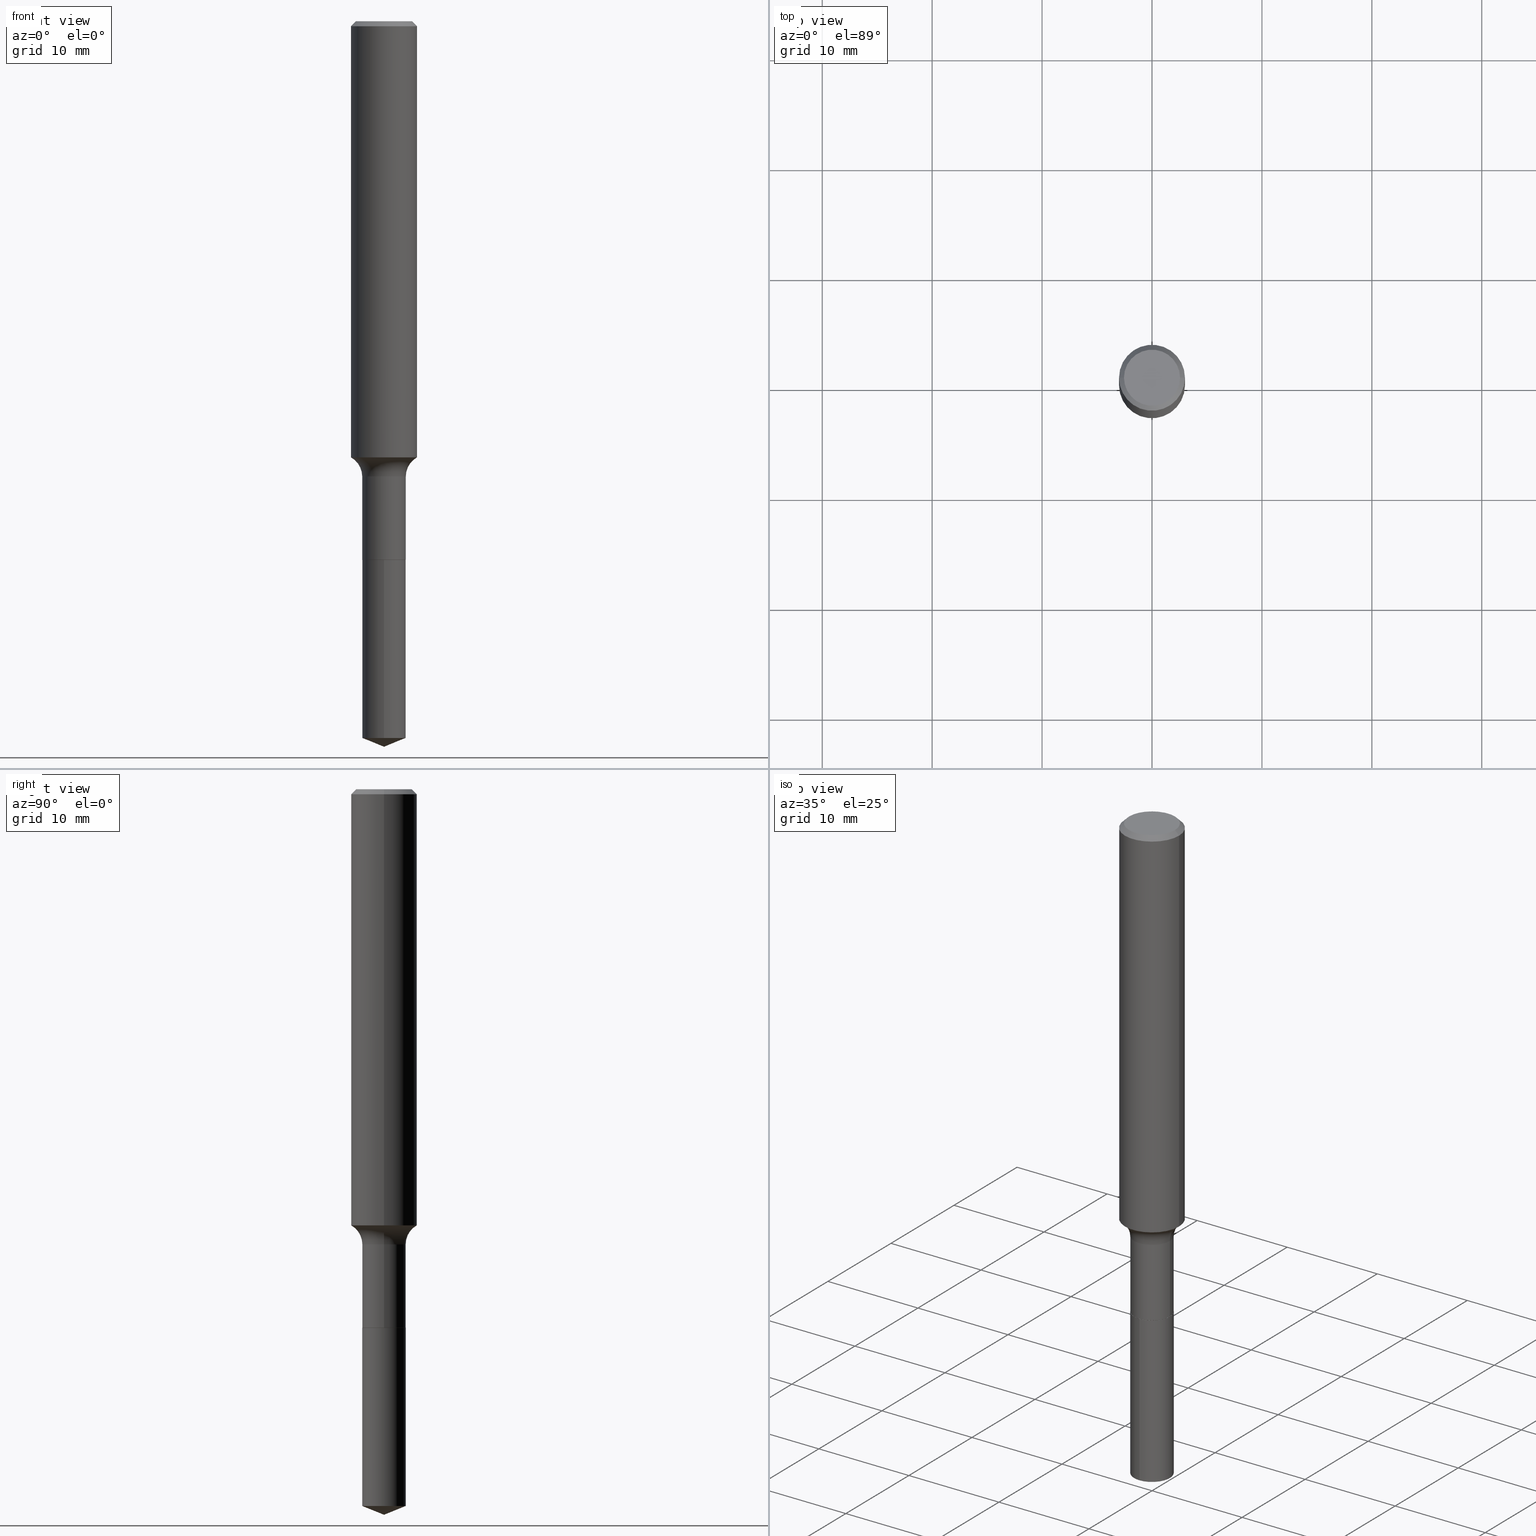
[diagram: canonical four-view strip — front | top / right | iso, engineering-drawing reading convention]
A machine part, canonical four-view strip (front | top / right | iso — engineering-drawing reading convention). The complete STEP part file that produces these views, byte-faithful:
ISO-10303-21;
HEADER;
FILE_DESCRIPTION (( 'STEP AP203' ),
    '1' );
FILE_NAME ('56803.STEP',
    '2024-04-19T13:58:35',
    ( '' ),
    ( '' ),
    'SwSTEP 2.0',
    'SolidWorks 2023',
    '' );
FILE_SCHEMA (( 'CONFIG_CONTROL_DESIGN' ));
ENDSEC;

DATA;
#1 = CARTESIAN_POINT ( 'NONE',  ( -0.1003850000000000159, 7.319105043583386689E-16, -3.975387207052680940E-17 ) ) ;
#2 = EDGE_CURVE ( 'NONE', #141, #307, #59, .T. ) ;
#3 = CYLINDRICAL_SURFACE ( 'NONE', #459, 0.1181000000000001077 ) ;
#4 = DIRECTION ( 'NONE',  ( 1.000000000000000000, -6.982962677686270655E-15, 0.000000000000000000 ) ) ;
#5 = DIRECTION ( 'NONE',  ( -2.445468806185136597E-29, 3.491481338843145583E-15, 1.000000000000000000 ) ) ;
#6 = CYLINDRICAL_SURFACE ( 'NONE', #8, 0.1181000000000001077 ) ;
#7 = CARTESIAN_POINT ( 'NONE',  ( 3.986358700962389845E-29, -5.691463730448209971E-15, -1.630099999999999660 ) ) ;
#8 = AXIS2_PLACEMENT_3D ( 'NONE', #465, #354, #467 ) ;
#9 = DIRECTION ( 'NONE',  ( -2.445468806185136597E-29, 3.491481338843145583E-15, 1.000000000000000000 ) ) ;
#10 = TOROIDAL_SURFACE ( 'NONE', #124, 0.1560999999999999333, 0.07799999999999993050 ) ;
#11 = EDGE_LOOP ( 'NONE', ( #41, #180, #186, #402 ) ) ;
#12 = CC_DESIGN_PERSON_AND_ORGANIZATION_ASSIGNMENT ( #274, #266, ( #187 ) ) ;
#13 = CARTESIAN_POINT ( 'NONE',  ( 0.1180999999999999966, -8.865394841523547570E-16, -0.01771500000000010913 ) ) ;
#14 =( LENGTH_UNIT ( ) NAMED_UNIT ( * ) SI_UNIT ( $, .METRE. ) );
#15 = CARTESIAN_POINT ( 'NONE',  ( 0.000000000000000000, 0.000000000000000000, 0.000000000000000000 ) ) ;
#16 = EDGE_CURVE ( 'NONE', #26, #67, #288, .T. ) ;
#17 = LOCAL_TIME ( 9, 58, 35.00000000000000000, #350 ) ;
#18 = DIRECTION ( 'NONE',  ( 1.000000000000000000, 0.000000000000000000, 0.000000000000000000 ) ) ;
#19 = APPROVAL ( #192, 'UNSPECIFIED' ) ;
#20 = VERTEX_POINT ( 'NONE', #397 ) ;
#21 = DIRECTION ( 'NONE',  ( -2.445468806185136597E-29, 3.491481338843145583E-15, 1.000000000000000000 ) ) ;
#22 = DIRECTION ( 'NONE',  ( -2.445416049279205825E-29, 3.491556889735175498E-15, 1.000000000000000000 ) ) ;
#23 = EDGE_LOOP ( 'NONE', ( #137, #225, #271, #374 ) ) ;
#24 = LINE ( 'NONE', #328, #98 ) ;
#25 = LINE ( 'NONE', #63, #409 ) ;
#26 = VERTEX_POINT ( 'NONE', #414 ) ;
#27 = CIRCLE ( 'NONE', #443, 0.07810000000000000275 ) ;
#28 = CC_DESIGN_DATE_AND_TIME_ASSIGNMENT ( #121, #415, ( #417 ) ) ;
#29 = APPROVAL_ROLE ( '' ) ;
#30 = CARTESIAN_POINT ( 'NONE',  ( 6.354169062447086700E-29, -9.072461422287877716E-15, -2.598399999999999821 ) ) ;
#31 = ORIENTED_EDGE ( 'NONE', *, *, #438, .T. ) ;
#32 = ORIENTED_EDGE ( 'NONE', *, *, #16, .F. ) ;
#33 = CALENDAR_DATE ( 2024, 19, 4 ) ;
#34 = CARTESIAN_POINT ( 'NONE',  ( -8.992195157677283514E-28, 1.283905539975511333E-13, 36.77167874015748339 ) ) ;
#35 = ADVANCED_FACE ( 'NONE', ( #76 ), #363, .T. ) ;
#36 = VERTEX_POINT ( 'NONE', #440 ) ;
#37 = CIRCLE ( 'NONE', #220, 0.1181000000000002048 ) ;
#38 = APPROVAL_STATUS ( 'not_yet_approved' ) ;
#39 = ORIENTED_EDGE ( 'NONE', *, *, #131, .T. ) ;
#40 = PRODUCT_RELATED_PRODUCT_CATEGORY ( 'detail', '', ( #187 ) ) ;
#41 = ORIENTED_EDGE ( 'NONE', *, *, #131, .F. ) ;
#42 = CC_DESIGN_PERSON_AND_ORGANIZATION_ASSIGNMENT ( #234, #81, ( #301 ) ) ;
#43 = DIRECTION ( 'NONE',  ( -2.445468806185136597E-29, 3.491481338843145583E-15, 1.000000000000000000 ) ) ;
#44 = DIRECTION ( 'NONE',  ( -6.982962677686265133E-15, -1.000000000000000000, 3.497884755011860410E-15 ) ) ;
#45 = CIRCLE ( 'NONE', #116, 0.1180999999999999966 ) ;
#46 = DIRECTION ( 'NONE',  ( 1.000000000000000000, -6.982962677686260400E-15, 0.000000000000000000 ) ) ;
#47 = AXIS2_PLACEMENT_3D ( 'NONE', #403, #365, #184 ) ;
#48 = CARTESIAN_POINT ( 'NONE',  ( -0.1560999999999999333, -4.582306519926694253E-15, -1.630099999999999660 ) ) ;
#49 = DIRECTION ( 'NONE',  ( 1.000000000000000000, -6.982962677686265922E-15, 4.876176775795935793E-29 ) ) ;
#50 = EDGE_CURVE ( 'NONE', #36, #442, #252, .T. ) ;
#51 = ORIENTED_EDGE ( 'NONE', *, *, #100, .F. ) ;
#52 = CARTESIAN_POINT ( 'NONE',  ( 4.717553874011746679E-29, -6.735416650762311704E-15, -1.929099999999999815 ) ) ;
#53 = FACE_OUTER_BOUND ( 'NONE', #120, .T. ) ;
#54 = CLOSED_SHELL ( 'NONE', ( #382, #202, #35, #492, #474 ) ) ;
#55 = CIRCLE ( 'NONE', #162, 0.07799999999999993050 ) ;
#56 = FACE_OUTER_BOUND ( 'NONE', #448, .T. ) ;
#57 = CARTESIAN_POINT ( 'NONE',  ( -0.07760000000000000231, -6.181386260638362742E-15, -1.929099999999999815 ) ) ;
#58 = EDGE_CURVE ( 'NONE', #157, #67, #385, .T. ) ;
#59 = LINE ( 'NONE', #93, #338 ) ;
#60 = PRODUCT_DEFINITION_SHAPE ( 'NONE', 'NONE',  #417 ) ;
#61 = LOCAL_TIME ( 9, 58, 35.00000000000000000, #376 ) ;
#62 = DIRECTION ( 'NONE',  ( 1.000000000000000000, -6.982962677686269077E-15, 4.883557194083113462E-29 ) ) ;
#63 = CARTESIAN_POINT ( 'NONE',  ( -0.1181000000000001077, 8.391509709326790846E-16, -5.809262341591049389E-30 ) ) ;
#64 = ORIENTED_EDGE ( 'NONE', *, *, #287, .T. ) ;
#65 = FACE_OUTER_BOUND ( 'NONE', #460, .T. ) ;
#66 = FACE_OUTER_BOUND ( 'NONE', #487, .T. ) ;
#67 = VERTEX_POINT ( 'NONE', #207 ) ;
#68 = CC_DESIGN_PERSON_AND_ORGANIZATION_ASSIGNMENT ( #456, #196, ( #417 ) ) ;
#69 = DIRECTION ( 'NONE',  ( -2.445468806185136597E-29, 3.491481338843145583E-15, 1.000000000000000000 ) ) ;
#70 = FACE_OUTER_BOUND ( 'NONE', #75, .T. ) ;
#71 = LINE ( 'NONE', #446, #259 ) ;
#72 = ORIENTED_EDGE ( 'NONE', *, *, #221, .T. ) ;
#73 = CONICAL_SURFACE ( 'NONE', #268, 0.07760000000000000231, 0.7853981633972775267 ) ;
#74 = COORDINATED_UNIVERSAL_TIME_OFFSET ( 5, 0, .BEHIND. ) ;
#75 = EDGE_LOOP ( 'NONE', ( #302, #111, #311, #480 ) ) ;
#76 = FACE_OUTER_BOUND ( 'NONE', #471, .T. ) ;
#77 = EDGE_CURVE ( 'NONE', #20, #136, #210, .T. ) ;
#78 = ORIENTED_EDGE ( 'NONE', *, *, #473, .T. ) ;
#79 = COORDINATED_UNIVERSAL_TIME_OFFSET ( 5, 0, .BEHIND. ) ;
#80 = LOCAL_TIME ( 9, 58, 35.00000000000000000, #74 ) ;
#81 = PERSON_AND_ORGANIZATION_ROLE ( 'creator' ) ;
#82 = ORIENTED_EDGE ( 'NONE', *, *, #92, .T. ) ;
#83 = ADVANCED_FACE ( 'NONE', ( #53 ), #122, .T. ) ;
#84 = LINE ( 'NONE', #132, #176 ) ;
#85 = ORIENTED_EDGE ( 'NONE', *, *, #304, .F. ) ;
#86 = DIRECTION ( 'NONE',  ( -6.982962677686265133E-15, -1.000000000000000000, 3.497884755011860410E-15 ) ) ;
#87 = AXIS2_PLACEMENT_3D ( 'NONE', #488, #89, #319 ) ;
#88 = CARTESIAN_POINT ( 'NONE',  ( 3.986358700962389845E-29, -5.691463730448209971E-15, -1.630099999999999660 ) ) ;
#89 = DIRECTION ( 'NONE',  ( -2.445416049279205825E-29, 3.491556889735175103E-15, 1.000000000000000000 ) ) ;
#90 = CIRCLE ( 'NONE', #372, 0.1180999999999999966 ) ;
#91 = DIRECTION ( 'NONE',  ( -2.445468806185136597E-29, 3.491481338843145583E-15, 1.000000000000000000 ) ) ;
#92 = EDGE_CURVE ( 'NONE', #444, #442, #464, .T. ) ;
#93 = CARTESIAN_POINT ( 'NONE',  ( -0.1180999999999999966, 7.628363003171413738E-16, -0.01771500000000010913 ) ) ;
#94 = ORIENTED_EDGE ( 'NONE', *, *, #399, .F. ) ;
#95 = DIRECTION ( 'NONE',  ( -2.445468806185136597E-29, 3.491481338843145583E-15, 1.000000000000000000 ) ) ;
#96 = CARTESIAN_POINT ( 'NONE',  ( 0.07809999999999997500, -5.453693851272973378E-16, 3.808294061896625002E-30 ) ) ;
#97 = DIRECTION ( 'NONE',  ( -2.445468806185136877E-29, 3.491481338843145188E-15, 1.000000000000000000 ) ) ;
#98 = VECTOR ( 'NONE', #339, 39.37007874015748143 ) ;
#99 = VERTEX_POINT ( 'NONE', #13 ) ;
#100 = EDGE_CURVE ( 'NONE', #265, #157, #407, .T. ) ;
#101 = LINE ( 'NONE', #142, #398 ) ;
#102 = DIRECTION ( 'NONE',  ( -2.445468806185136877E-29, 3.491481338843145188E-15, 1.000000000000000000 ) ) ;
#104 = ORIENTED_EDGE ( 'NONE', *, *, #166, .F. ) ;
#103 = MANIFOLD_SOLID_BREP ( 'Body-Move/Copy2[1]', #54 ) ;
#105 = DIRECTION ( 'NONE',  ( -2.445468806185136597E-29, 3.491481338843145583E-15, 1.000000000000000000 ) ) ;
#106 = CARTESIAN_POINT ( 'NONE',  ( 3.986358700962389845E-29, -5.691463730448209971E-15, -1.630099999999999660 ) ) ;
#107 = LENGTH_MEASURE_WITH_UNIT ( LENGTH_MEASURE( 0.02539999999999999897 ), #14 );
#108 = DIRECTION ( 'NONE',  ( -2.445468806185136597E-29, 3.491481338843145583E-15, 1.000000000000000000 ) ) ;
#109 = ORIENTED_EDGE ( 'NONE', *, *, #100, .T. ) ;
#110 = FACE_OUTER_BOUND ( 'NONE', #23, .T. ) ;
#111 = ORIENTED_EDGE ( 'NONE', *, *, #50, .T. ) ;
#112 = DIRECTION ( 'NONE',  ( 1.000000000000000000, -6.982962677686269077E-15, 4.883557194083113462E-29 ) ) ;
#113 = DIRECTION ( 'NONE',  ( 2.445416049279205264E-29, -3.491556889735175498E-15, -1.000000000000000000 ) ) ;
#114 = EDGE_LOOP ( 'NONE', ( #51, #353, #117, #261 ) ) ;
#115 = CALENDAR_DATE ( 2024, 19, 4 ) ;
#116 = AXIS2_PLACEMENT_3D ( 'NONE', #284, #91, #318 ) ;
#117 = ORIENTED_EDGE ( 'NONE', *, *, #424, .T. ) ;
#118 = AXIS2_PLACEMENT_3D ( 'NONE', #219, #188, #18 ) ;
#119 = ADVANCED_FACE ( 'NONE', ( #203 ), #6, .T. ) ;
#120 = EDGE_LOOP ( 'NONE', ( #104, #39, #419, #298 ) ) ;
#121 = DATE_AND_TIME ( #198, #80 ) ;
#122 = CONICAL_SURFACE ( 'NONE', #390, 0.1180999999999999966, 0.7853981633974459475 ) ;
#123 = UNCERTAINTY_MEASURE_WITH_UNIT (LENGTH_MEASURE( 1.000000000000000082E-05 ), #295, 'distance_accuracy_value', 'NONE');
#124 = AXIS2_PLACEMENT_3D ( 'NONE', #303, #445, #112 ) ;
#125 = PERSON_AND_ORGANIZATION_ROLE ( 'classification_officer' ) ;
#126 = EDGE_CURVE ( 'NONE', #307, #99, #45, .T. ) ;
#127 = DIRECTION ( 'NONE',  ( 2.445468806185136597E-29, -3.491481338843145583E-15, -1.000000000000000000 ) ) ;
#128 = DIRECTION ( 'NONE',  ( -2.445416049279205825E-29, 3.491556889735175103E-15, 1.000000000000000000 ) ) ;
#129 = CARTESIAN_POINT ( 'NONE',  ( 9.721685407353558503E-46, -1.387999024809845952E-31, -3.975387207052179891E-17 ) ) ;
#130 = AXIS2_PLACEMENT_3D ( 'NONE', #357, #169, #212 ) ;
#131 = EDGE_CURVE ( 'NONE', #195, #99, #84, .T. ) ;
#132 = CARTESIAN_POINT ( 'NONE',  ( 0.1180999999999999966, -8.720764054544245267E-16, -0.01771500000000010913 ) ) ;
#133 = CC_DESIGN_SECURITY_CLASSIFICATION ( #247, ( #301 ) ) ;
#134 = ORIENTED_EDGE ( 'NONE', *, *, #368, .F. ) ;
#135 = CARTESIAN_POINT ( 'NONE',  ( 4.332147990156996744E-31, -6.185159191760670395E-17, -0.01771500000000010913 ) ) ;
#136 = VERTEX_POINT ( 'NONE', #289 ) ;
#137 = ORIENTED_EDGE ( 'NONE', *, *, #287, .F. ) ;
#138 = DIRECTION ( 'NONE',  ( -2.445416049279205825E-29, 3.491556889735175103E-15, 1.000000000000000000 ) ) ;
#139 = DIRECTION ( 'NONE',  ( 1.000000000000000000, -6.982962677686266711E-15, 0.000000000000000000 ) ) ;
#140 = CLOSED_SHELL ( 'NONE', ( #447, #83, #119, #293, #205, #356, #316, #457, #174, #251, #147, #463 ) ) ;
#141 = VERTEX_POINT ( 'NONE', #1 ) ;
#142 = CARTESIAN_POINT ( 'NONE',  ( -5.453693851272501048E-16, -0.07810000000000671960, -1.929099999999999593 ) ) ;
#143 = CYLINDRICAL_SURFACE ( 'NONE', #238, 0.07810000000000000275 ) ;
#144 = CARTESIAN_POINT ( 'NONE',  ( -0.1181000000000001632, -4.614481620681204759E-15, -1.561982454536293918 ) ) ;
#145 = CARTESIAN_POINT ( 'NONE',  ( 0.07760000000000000231, -7.277294554550764556E-15, -1.929099999999999815 ) ) ;
#146 = ORIENTED_EDGE ( 'NONE', *, *, #256, .F. ) ;
#147 = ADVANCED_FACE ( 'NONE', ( #324 ), #472, .F. ) ;
#148 = AXIS2_PLACEMENT_3D ( 'NONE', #34, #179, #334 ) ;
#149 = LOCAL_TIME ( 9, 58, 35.00000000000000000, #79 ) ;
#150 = ORIENTED_EDGE ( 'NONE', *, *, #58, .T. ) ;
#151 = ORIENTED_EDGE ( 'NONE', *, *, #341, .T. ) ;
#152 = APPROVAL_DATE_TIME ( #485, #19 ) ;
#153 = EDGE_CURVE ( 'NONE', #367, #263, #161, .T. ) ;
#154 = EDGE_LOOP ( 'NONE', ( #78, #388, #94, #146 ) ) ;
#155 = ORIENTED_EDGE ( 'NONE', *, *, #244, .T. ) ;
#156 = AXIS2_PLACEMENT_3D ( 'NONE', #297, #329, #183 ) ;
#157 = VERTEX_POINT ( 'NONE', #320 ) ;
#158 = APPROVAL_DATE_TIME ( #201, #230 ) ;
#159 = PERSON_AND_ORGANIZATION ( #466, #379 ) ;
#160 = APPROVAL ( #272, 'UNSPECIFIED' ) ;
#161 = CIRCLE ( 'NONE', #322, 0.07760000000000000231 ) ;
#162 = AXIS2_PLACEMENT_3D ( 'NONE', #232, #396, #292 ) ;
#163 = CARTESIAN_POINT ( 'NONE',  ( 3.819779368377000263E-29, -5.453632591613882956E-15, -1.561982454536293918 ) ) ;
#164 = DIRECTION ( 'NONE',  ( -6.474490251793212550E-15, -0.9271838545667910880, 0.3746065934159026334 ) ) ;
#165 = ORIENTED_EDGE ( 'NONE', *, *, #153, .F. ) ;
#166 = EDGE_CURVE ( 'NONE', #195, #141, #441, .T. ) ;
#167 = CARTESIAN_POINT ( 'NONE',  ( 0.1003850000000000159, -7.803837484803599345E-16, -3.975387207051662201E-17 ) ) ;
#168 = APPROVAL_PERSON_ORGANIZATION ( #159, #160, #412 ) ;
#169 = DIRECTION ( 'NONE',  ( -2.445468806185136597E-29, 3.491481338843145583E-15, 1.000000000000000000 ) ) ;
#170 = DIRECTION ( 'NONE',  ( 1.000000000000000000, -6.982962677686268288E-15, 0.000000000000000000 ) ) ;
#171 = ORIENTED_EDGE ( 'NONE', *, *, #387, .T. ) ;
#172 = CARTESIAN_POINT ( 'NONE',  ( 4.717553874011746679E-29, -6.735416650762311704E-15, -1.929099999999999815 ) ) ;
#173 = DIRECTION ( 'NONE',  ( -2.445468806185136597E-29, 3.491481338843145583E-15, 1.000000000000000000 ) ) ;
#174 = ADVANCED_FACE ( 'NONE', ( #243 ), #315, .T. ) ;
#175 = CARTESIAN_POINT ( 'NONE',  ( 4.860842703676779252E-46, -6.939995124049229759E-32, -1.987693603526089945E-17 ) ) ;
#176 = VECTOR ( 'NONE', #326, 39.37007874015748143 ) ;
#177 = APPROVAL_PERSON_ORGANIZATION ( #453, #230, #351 ) ;
#178 = PLANE ( 'NONE',  #433 ) ;
#179 = DIRECTION ( 'NONE',  ( -2.445416049279205825E-29, 3.491556889735175103E-15, 1.000000000000000000 ) ) ;
#180 = ORIENTED_EDGE ( 'NONE', *, *, #341, .F. ) ;
#181 = EDGE_CURVE ( 'NONE', #67, #157, #299, .T. ) ;
#182 = CARTESIAN_POINT ( 'NONE',  ( 6.354374394005791819E-29, -9.072169931836252108E-15, -2.598399999999999821 ) ) ;
#183 = DIRECTION ( 'NONE',  ( -6.982962677686265133E-15, -1.000000000000000000, 3.497884755011860410E-15 ) ) ;
#184 = DIRECTION ( 'NONE',  ( 1.000000000000000000, -6.982962677686266711E-15, 4.879445411049954809E-29 ) ) ;
#185 = APPLICATION_CONTEXT ( 'configuration controlled 3d designs of mechanical parts and assemblies' ) ;
#186 = ORIENTED_EDGE ( 'NONE', *, *, #2, .T. ) ;
#187 = PRODUCT ( '56803', '56803', '', ( #483 ) ) ;
#188 = DIRECTION ( 'NONE',  ( 0.000000000000000000, 0.000000000000000000, 1.000000000000000000 ) ) ;
#189 = VECTOR ( 'NONE', #336, 39.37007874015748854 ) ;
#190 = LINE ( 'NONE', #260, #310 ) ;
#191 = EDGE_LOOP ( 'NONE', ( #477, #72, #155, #233 ) ) ;
#192 = APPROVAL_STATUS ( 'not_yet_approved' ) ;
#193 = EDGE_CURVE ( 'NONE', #136, #20, #281, .T. ) ;
#194 = DIRECTION ( 'NONE',  ( -2.445468806185136597E-29, 3.491481338843145583E-15, 1.000000000000000000 ) ) ;
#195 = VERTEX_POINT ( 'NONE', #167 ) ;
#196 = PERSON_AND_ORGANIZATION_ROLE ( 'creator' ) ;
#197 = ORIENTED_EDGE ( 'NONE', *, *, #193, .T. ) ;
#198 = CALENDAR_DATE ( 2024, 19, 4 ) ;
#199 = AXIS2_PLACEMENT_3D ( 'NONE', #88, #95, #4 ) ;
#200 =( GEOMETRIC_REPRESENTATION_CONTEXT ( 3 ) GLOBAL_UNCERTAINTY_ASSIGNED_CONTEXT ( ( #123 ) ) GLOBAL_UNIT_ASSIGNED_CONTEXT ( ( #295, #395, #369 ) ) REPRESENTATION_CONTEXT ( 'NONE', 'WORKASPACE' ) );
#201 = DATE_AND_TIME ( #33, #61 ) ;
#202 = ADVANCED_FACE ( 'NONE', ( #321 ), #309, .T. ) ;
#203 = FACE_OUTER_BOUND ( 'NONE', #154, .T. ) ;
#204 = AXIS2_PLACEMENT_3D ( 'NONE', #434, #194, #344 ) ;
#205 = ADVANCED_FACE ( 'NONE', ( #383 ), #208, .T. ) ;
#206 = DIRECTION ( 'NONE',  ( 1.000000000000000000, -6.982962677686260400E-15, 0.000000000000000000 ) ) ;
#207 = CARTESIAN_POINT ( 'NONE',  ( 0.07809999999999996112, -6.236833115575507408E-15, -1.630099999999999660 ) ) ;
#208 = CYLINDRICAL_SURFACE ( 'NONE', #130, 0.07809999999999997500 ) ;
#209 = ORIENTED_EDGE ( 'NONE', *, *, #244, .F. ) ;
#210 = CIRCLE ( 'NONE', #479, 0.07810000000000000275 ) ;
#211 = AXIS2_PLACEMENT_3D ( 'NONE', #300, #69, #264 ) ;
#212 = DIRECTION ( 'NONE',  ( 1.000000000000000000, -6.982962677686267499E-15, 4.876176775795936353E-29 ) ) ;
#213 = DIRECTION ( 'NONE',  ( -2.445416049279205825E-29, 3.491556889735175103E-15, 1.000000000000000000 ) ) ;
#214 = CARTESIAN_POINT ( 'NONE',  ( 0.000000000000000000, 0.000000000000000000, 0.000000000000000000 ) ) ;
#215 = DIRECTION ( 'NONE',  ( 2.445468806185136597E-29, -3.491481338843145583E-15, -1.000000000000000000 ) ) ;
#216 = AXIS2_PLACEMENT_3D ( 'NONE', #129, #425, #431 ) ;
#217 = CARTESIAN_POINT ( 'NONE',  ( 6.277107081647638658E-29, -8.962141525915846057E-15, -2.566845551762275246 ) ) ;
#218 = AXIS2_PLACEMENT_3D ( 'NONE', #7, #173, #461 ) ;
#219 = CARTESIAN_POINT ( 'NONE',  ( 0.000000000000000000, 0.000000000000000000, 0.000000000000000000 ) ) ;
#220 = AXIS2_PLACEMENT_3D ( 'NONE', #163, #9, #170 ) ;
#221 = EDGE_CURVE ( 'NONE', #263, #367, #468, .T. ) ;
#222 = LINE ( 'NONE', #182, #189 ) ;
#223 = ADVANCED_BREP_SHAPE_REPRESENTATION ( '56803', ( #103, #423, #118 ), #200 ) ;
#224 = APPLICATION_PROTOCOL_DEFINITION ( 'international standard', 'config_control_design', 1994, #313 ) ;
#225 = ORIENTED_EDGE ( 'NONE', *, *, #273, .T. ) ;
#226 = DIRECTION ( 'NONE',  ( -2.445468806185136597E-29, 3.491481338843145583E-15, 1.000000000000000000 ) ) ;
#227 = CYLINDRICAL_SURFACE ( 'NONE', #156, 0.07810000000000000275 ) ;
#228 = DIRECTION ( 'NONE',  ( 1.000000000000000000, -6.982962677686266711E-15, 0.000000000000000000 ) ) ;
#229 = ORIENTED_EDGE ( 'NONE', *, *, #424, .F. ) ;
#230 = APPROVAL ( #38, 'UNSPECIFIED' ) ;
#231 = CIRCLE ( 'NONE', #275, 0.1181000000000002048 ) ;
#232 = CARTESIAN_POINT ( 'NONE',  ( 0.1560999999999999333, -6.781504204435035454E-15, -1.630099999999999660 ) ) ;
#233 = ORIENTED_EDGE ( 'NONE', *, *, #273, .F. ) ;
#234 = PERSON_AND_ORGANIZATION ( #466, #379 ) ;
#235 = EDGE_LOOP ( 'NONE', ( #362, #31, #236, #85 ) ) ;
#236 = ORIENTED_EDGE ( 'NONE', *, *, #193, .F. ) ;
#237 = AXIS2_PLACEMENT_3D ( 'NONE', #384, #138, #429 ) ;
#238 = AXIS2_PLACEMENT_3D ( 'NONE', #486, #435, #262 ) ;
#239 = EDGE_CURVE ( 'NONE', #442, #36, #490, .T. ) ;
#240 = DIRECTION ( 'NONE',  ( -1.000000000000000000, 6.982962677686266711E-15, 0.000000000000000000 ) ) ;
#241 = SECURITY_CLASSIFICATION_LEVEL ( 'unclassified' ) ;
#242 = ORIENTED_EDGE ( 'NONE', *, *, #312, .T. ) ;
#243 = FACE_OUTER_BOUND ( 'NONE', #11, .T. ) ;
#244 = EDGE_CURVE ( 'NONE', #367, #26, #24, .T. ) ;
#245 = CARTESIAN_POINT ( 'NONE',  ( 6.354169062447087821E-29, -9.072461422287877716E-15, -2.598399999999999821 ) ) ;
#246 = AXIS2_PLACEMENT_3D ( 'NONE', #135, #127, #249 ) ;
#247 = SECURITY_CLASSIFICATION ( '', '', #241 ) ;
#248 = ORIENTED_EDGE ( 'NONE', *, *, #181, .F. ) ;
#249 = DIRECTION ( 'NONE',  ( -1.000000000000000000, 6.982962677686266711E-15, 0.000000000000000000 ) ) ;
#250 = DIRECTION ( 'NONE',  ( -2.445468806185136877E-29, 3.491481338843145188E-15, 1.000000000000000000 ) ) ;
#251 = ADVANCED_FACE ( 'NONE', ( #65 ), #178, .F. ) ;
#252 = CIRCLE ( 'NONE', #87, 0.07810000000000000275 ) ;
#253 = FACE_OUTER_BOUND ( 'NONE', #400, .T. ) ;
#254 = DIRECTION ( 'NONE',  ( -6.982962677686265133E-15, -1.000000000000000000, 0.000000000000000000 ) ) ;
#255 = DIRECTION ( 'NONE',  ( -2.445468806185136597E-29, 3.491481338843145583E-15, 1.000000000000000000 ) ) ;
#256 = EDGE_CURVE ( 'NONE', #455, #99, #332, .T. ) ;
#257 = DIRECTION ( 'NONE',  ( -0.7071067811864267805, 7.493145998869918709E-15, 0.7071067811866682540 ) ) ;
#258 = DIRECTION ( 'NONE',  ( -1.000000000000000000, 6.982962677686265922E-15, -4.876176775795935793E-29 ) ) ;
#259 = VECTOR ( 'NONE', #257, 39.37007874015748143 ) ;
#260 = CARTESIAN_POINT ( 'NONE',  ( 5.549338766286853006E-16, 0.07809999999999327203, -1.929100000000000259 ) ) ;
#261 = ORIENTED_EDGE ( 'NONE', *, *, #181, .T. ) ;
#262 = DIRECTION ( 'NONE',  ( -6.982962677686265133E-15, -1.000000000000000000, 3.497884755011860410E-15 ) ) ;
#263 = VERTEX_POINT ( 'NONE', #57 ) ;
#264 = DIRECTION ( 'NONE',  ( 1.000000000000000000, -6.982962677686266711E-15, 0.000000000000000000 ) ) ;
#265 = VERTEX_POINT ( 'NONE', #144 ) ;
#266 = PERSON_AND_ORGANIZATION_ROLE ( 'design_owner' ) ;
#267 = AXIS2_PLACEMENT_3D ( 'NONE', #48, #285, #278 ) ;
#268 = AXIS2_PLACEMENT_3D ( 'NONE', #358, #5, #360 ) ;
#269 = ORIENTED_EDGE ( 'NONE', *, *, #346, .F. ) ;
#270 = DATE_AND_TIME ( #115, #386 ) ;
#271 = ORIENTED_EDGE ( 'NONE', *, *, #16, .T. ) ;
#272 = APPROVAL_STATUS ( 'not_yet_approved' ) ;
#273 = EDGE_CURVE ( 'NONE', #371, #26, #27, .T. ) ;
#274 = PERSON_AND_ORGANIZATION ( #466, #379 ) ;
#275 = AXIS2_PLACEMENT_3D ( 'NONE', #373, #255, #370 ) ;
#276 = DATE_AND_TIME ( #378, #149 ) ;
#277 = CC_DESIGN_PERSON_AND_ORGANIZATION_ASSIGNMENT ( #491, #125, ( #247 ) ) ;
#278 = DIRECTION ( 'NONE',  ( -1.000000000000000000, 7.105427357601005014E-15, 0.000000000000000000 ) ) ;
#279 = DIMENSIONAL_EXPONENTS ( 1.000000000000000000, 0.000000000000000000, 0.000000000000000000, 0.000000000000000000, 0.000000000000000000, 0.000000000000000000, 0.000000000000000000 ) ;
#280 = DIRECTION ( 'NONE',  ( -2.438088387897960049E-29, 3.491481338843145188E-15, 1.000000000000000000 ) ) ;
#281 = CIRCLE ( 'NONE', #377, 0.07810000000000000275 ) ;
#282 = CIRCLE ( 'NONE', #211, 0.07810000000000000275 ) ;
#283 = VECTOR ( 'NONE', #482, 39.37007874015748143 ) ;
#284 = CARTESIAN_POINT ( 'NONE',  ( 4.332147990156996744E-31, -6.185159191760670395E-17, -0.01771500000000010913 ) ) ;
#285 = DIRECTION ( 'NONE',  ( 7.105427357601001859E-15, 1.000000000000000000, -3.491481338843145583E-15 ) ) ;
#286 = PLANE ( 'NONE',  #364 ) ;
#287 = EDGE_CURVE ( 'NONE', #371, #157, #432, .T. ) ;
#288 = LINE ( 'NONE', #96, #427 ) ;
#289 = CARTESIAN_POINT ( 'NONE',  ( -5.453693851272501048E-16, -0.07810000000000671960, -1.929099999999999593 ) ) ;
#290 = DIRECTION ( 'NONE',  ( -2.445468806185136597E-29, 3.491481338843145583E-15, 1.000000000000000000 ) ) ;
#291 = CARTESIAN_POINT ( 'NONE',  ( -0.07809999999999997500, 5.549338766286380675E-16, -3.841688305489080574E-30 ) ) ;
#292 = DIRECTION ( 'NONE',  ( 1.000000000000000000, -6.982962677686264344E-15, 0.000000000000000000 ) ) ;
#293 = ADVANCED_FACE ( 'NONE', ( #253 ), #469, .F. ) ;
#294 = DIRECTION ( 'NONE',  ( -2.445416049279205825E-29, 3.491556889735175498E-15, 1.000000000000000000 ) ) ;
#295 =( CONVERSION_BASED_UNIT ( 'INCH', #107 ) LENGTH_UNIT ( ) NAMED_UNIT ( #279 ) );
#296 = CARTESIAN_POINT ( 'NONE',  ( 4.716331139608653877E-29, -6.733670910092890200E-15, -1.928599999999999648 ) ) ;
#297 = CARTESIAN_POINT ( 'NONE',  ( 4.717553874011746679E-29, -6.735416650762311704E-15, -1.929099999999999815 ) ) ;
#298 = ORIENTED_EDGE ( 'NONE', *, *, #2, .F. ) ;
#299 = CIRCLE ( 'NONE', #199, 0.07809999999999996112 ) ;
#300 = CARTESIAN_POINT ( 'NONE',  ( 4.716331139608653877E-29, -6.733670910092890200E-15, -1.928599999999999648 ) ) ;
#301 = PRODUCT_DEFINITION_FORMATION_WITH_SPECIFIED_SOURCE ( 'ANY', '', #187, .NOT_KNOWN. ) ;
#302 = ORIENTED_EDGE ( 'NONE', *, *, #438, .F. ) ;
#303 = CARTESIAN_POINT ( 'NONE',  ( 3.986358700962389845E-29, -5.691463730448209971E-15, -1.630099999999999660 ) ) ;
#304 = EDGE_CURVE ( 'NONE', #442, #136, #101, .T. ) ;
#305 = ORIENTED_EDGE ( 'NONE', *, *, #153, .T. ) ;
#306 = SHAPE_DEFINITION_REPRESENTATION ( #60, #223 ) ;
#307 = VERTEX_POINT ( 'NONE', #437 ) ;
#308 = PERSON_AND_ORGANIZATION_ROLE ( 'design_supplier' ) ;
#309 = CONICAL_SURFACE ( 'NONE', #237, 97.44436430773200186, 1.186823891356157734 ) ;
#310 = VECTOR ( 'NONE', #22, 39.37007874015748143 ) ;
#311 = ORIENTED_EDGE ( 'NONE', *, *, #304, .T. ) ;
#312 = EDGE_CURVE ( 'NONE', #444, #36, #222, .T. ) ;
#313 = APPLICATION_CONTEXT ( 'configuration controlled 3d designs of mechanical parts and assemblies' ) ;
#314 = APPROVAL_DATE_TIME ( #270, #160 ) ;
#315 = CONICAL_SURFACE ( 'NONE', #246, 0.1180999999999999966, 0.7853981633974459475 ) ;
#316 = ADVANCED_FACE ( 'NONE', ( #478 ), #10, .F. ) ;
#317 = CIRCLE ( 'NONE', #47, 0.1003850000000000159 ) ;
#318 = DIRECTION ( 'NONE',  ( 1.000000000000000000, -6.982962677686266711E-15, 0.000000000000000000 ) ) ;
#319 = DIRECTION ( 'NONE',  ( -6.982962677686265133E-15, -1.000000000000000000, 0.000000000000000000 ) ) ;
#320 = CARTESIAN_POINT ( 'NONE',  ( -0.07809999999999996112, -5.657633443641911821E-15, -1.630099999999999660 ) ) ;
#321 = FACE_OUTER_BOUND ( 'NONE', #489, .T. ) ;
#322 = AXIS2_PLACEMENT_3D ( 'NONE', #470, #352, #206 ) ;
#323 = EDGE_CURVE ( 'NONE', #26, #371, #282, .T. ) ;
#324 = FACE_OUTER_BOUND ( 'NONE', #450, .T. ) ;
#325 = ORIENTED_EDGE ( 'NONE', *, *, #256, .T. ) ;
#326 = DIRECTION ( 'NONE',  ( 0.7071067811865459074, -7.319954787623251312E-15, -0.7071067811865492381 ) ) ;
#327 = ORIENTED_EDGE ( 'NONE', *, *, #126, .F. ) ;
#328 = CARTESIAN_POINT ( 'NONE',  ( 0.07760000000000000231, -7.277294554550764556E-15, -1.929099999999999815 ) ) ;
#329 = DIRECTION ( 'NONE',  ( -2.445416049279205825E-29, 3.491556889735175103E-15, 1.000000000000000000 ) ) ;
#330 = CONICAL_SURFACE ( 'NONE', #204, 0.07760000000000000231, 0.7853981633972775267 ) ;
#331 = CC_DESIGN_APPROVAL ( #19, ( #247 ) ) ;
#332 = LINE ( 'NONE', #475, #283 ) ;
#333 = DIRECTION ( 'NONE',  ( 1.000000000000000000, -6.982962677686267499E-15, 4.876176775795936353E-29 ) ) ;
#334 = DIRECTION ( 'NONE',  ( -6.982962677686265922E-15, -1.000000000000000000, 3.498761904101698973E-15 ) ) ;
#335 = ORIENTED_EDGE ( 'NONE', *, *, #50, .F. ) ;
#336 = DIRECTION ( 'NONE',  ( 6.588037525764825212E-15, 0.9271838545667936415, 0.3746065934158961386 ) ) ;
#337 = ORIENTED_EDGE ( 'NONE', *, *, #323, .F. ) ;
#338 = VECTOR ( 'NONE', #436, 39.37007874015748143 ) ;
#339 = DIRECTION ( 'NONE',  ( 0.7071067811864267805, -2.468850131080992517E-15, 0.7071067811866682540 ) ) ;
#340 = AXIS2_PLACEMENT_3D ( 'NONE', #15, #105, #333 ) ;
#341 = EDGE_CURVE ( 'NONE', #141, #195, #317, .T. ) ;
#342 = ORIENTED_EDGE ( 'NONE', *, *, #77, .T. ) ;
#343 = CALENDAR_DATE ( 2024, 19, 4 ) ;
#344 = DIRECTION ( 'NONE',  ( 1.000000000000000000, -6.982962677686260400E-15, 0.000000000000000000 ) ) ;
#345 = ORIENTED_EDGE ( 'NONE', *, *, #239, .F. ) ;
#346 = EDGE_CURVE ( 'NONE', #265, #455, #231, .T. ) ;
#347 = ORIENTED_EDGE ( 'NONE', *, *, #312, .F. ) ;
#348 = AXIS2_PLACEMENT_3D ( 'NONE', #359, #43, #46 ) ;
#349 = APPROVAL_PERSON_ORGANIZATION ( #418, #19, #29 ) ;
#350 = COORDINATED_UNIVERSAL_TIME_OFFSET ( 5, 0, .BEHIND. ) ;
#351 = APPROVAL_ROLE ( '' ) ;
#352 = DIRECTION ( 'NONE',  ( -2.445468806185136597E-29, 3.491481338843145583E-15, 1.000000000000000000 ) ) ;
#353 = ORIENTED_EDGE ( 'NONE', *, *, #473, .F. ) ;
#354 = DIRECTION ( 'NONE',  ( -2.445468806185136597E-29, 3.491481338843145583E-15, 1.000000000000000000 ) ) ;
#355 = FACE_OUTER_BOUND ( 'NONE', #191, .T. ) ;
#356 = ADVANCED_FACE ( 'NONE', ( #110 ), #476, .T. ) ;
#357 = CARTESIAN_POINT ( 'NONE',  ( 0.000000000000000000, 0.000000000000000000, 0.000000000000000000 ) ) ;
#358 = CARTESIAN_POINT ( 'NONE',  ( 4.717553874011746679E-29, -6.735416650762311704E-15, -1.929099999999999815 ) ) ;
#359 = CARTESIAN_POINT ( 'NONE',  ( 4.717553874011746679E-29, -6.735416650762311704E-15, -1.929099999999999815 ) ) ;
#360 = DIRECTION ( 'NONE',  ( 1.000000000000000000, -6.982962677686260400E-15, 0.000000000000000000 ) ) ;
#361 = CC_DESIGN_PERSON_AND_ORGANIZATION_ASSIGNMENT ( #413, #308, ( #301 ) ) ;
#362 = ORIENTED_EDGE ( 'NONE', *, *, #239, .T. ) ;
#363 = CONICAL_SURFACE ( 'NONE', #148, 97.44436430773200186, 1.186823891356157734 ) ;
#364 = AXIS2_PLACEMENT_3D ( 'NONE', #422, #113, #404 ) ;
#365 = DIRECTION ( 'NONE',  ( -2.445468806185136597E-29, 3.491481338843145583E-15, 1.000000000000000000 ) ) ;
#366 = FACE_OUTER_BOUND ( 'NONE', #235, .T. ) ;
#367 = VERTEX_POINT ( 'NONE', #145 ) ;
#368 = EDGE_CURVE ( 'NONE', #265, #307, #25, .T. ) ;
#369 =( NAMED_UNIT ( * ) SI_UNIT ( $, .STERADIAN. ) SOLID_ANGLE_UNIT ( ) );
#370 = DIRECTION ( 'NONE',  ( 1.000000000000000000, -6.982962677686268288E-15, 0.000000000000000000 ) ) ;
#371 = VERTEX_POINT ( 'NONE', #405 ) ;
#372 = AXIS2_PLACEMENT_3D ( 'NONE', #439, #108, #228 ) ;
#373 = CARTESIAN_POINT ( 'NONE',  ( 3.819779368377000263E-29, -5.453632591613882956E-15, -1.561982454536293918 ) ) ;
#374 = ORIENTED_EDGE ( 'NONE', *, *, #58, .F. ) ;
#375 = ORIENTED_EDGE ( 'NONE', *, *, #323, .T. ) ;
#376 = COORDINATED_UNIVERSAL_TIME_OFFSET ( 5, 0, .BEHIND. ) ;
#377 = AXIS2_PLACEMENT_3D ( 'NONE', #52, #420, #86 ) ;
#378 = CALENDAR_DATE ( 2024, 19, 4 ) ;
#379 = ORGANIZATION ( 'UNSPECIFIED', 'UNSPECIFIED', '' ) ;
#380 = DESIGN_CONTEXT ( 'detailed design', #185, 'design' ) ;
#381 = DATE_TIME_ROLE ( 'classification_date' ) ;
#382 = ADVANCED_FACE ( 'NONE', ( #366 ), #143, .T. ) ;
#383 = FACE_OUTER_BOUND ( 'NONE', #454, .T. ) ;
#384 = CARTESIAN_POINT ( 'NONE',  ( -8.992195157677283514E-28, 1.283905539975511333E-13, 36.77167874015748339 ) ) ;
#385 = CIRCLE ( 'NONE', #218, 0.07809999999999996112 ) ;
#386 = LOCAL_TIME ( 9, 58, 35.00000000000000000, #410 ) ;
#387 = EDGE_CURVE ( 'NONE', #263, #371, #71, .T. ) ;
#388 = ORIENTED_EDGE ( 'NONE', *, *, #368, .T. ) ;
#389 = CARTESIAN_POINT ( 'NONE',  ( 4.717553874011746679E-29, -6.735416650762311704E-15, -1.929099999999999815 ) ) ;
#390 = AXIS2_PLACEMENT_3D ( 'NONE', #421, #215, #240 ) ;
#391 = AXIS2_PLACEMENT_3D ( 'NONE', #217, #213, #254 ) ;
#392 = CARTESIAN_POINT ( 'NONE',  ( 0.1181000000000001632, -6.278320483848632008E-15, -1.561982454536293918 ) ) ;
#393 = ORIENTED_EDGE ( 'NONE', *, *, #221, .F. ) ;
#394 = DIRECTION ( 'NONE',  ( 2.438088387897960049E-29, -3.491481338843145188E-15, -1.000000000000000000 ) ) ;
#395 =( NAMED_UNIT ( * ) PLANE_ANGLE_UNIT ( ) SI_UNIT ( $, .RADIAN. ) );
#396 = DIRECTION ( 'NONE',  ( -6.982962677686266711E-15, -1.000000000000000000, 3.491481338843145583E-15 ) ) ;
#397 = CARTESIAN_POINT ( 'NONE',  ( 5.549338766287009792E-16, 0.07809999999999327203, -1.929100000000000259 ) ) ;
#398 = VECTOR ( 'NONE', #294, 39.37007874015748143 ) ;
#399 = EDGE_CURVE ( 'NONE', #99, #307, #90, .T. ) ;
#400 = EDGE_LOOP ( 'NONE', ( #269, #109, #150, #229 ) ) ;
#401 = CARTESIAN_POINT ( 'NONE',  ( -5.453693851272348206E-16, -0.07810000000000898168, -2.566845551762275246 ) ) ;
#402 = ORIENTED_EDGE ( 'NONE', *, *, #126, .T. ) ;
#403 = CARTESIAN_POINT ( 'NONE',  ( 9.721685407353558503E-46, -1.387999024809845952E-31, -3.975387207052179891E-17 ) ) ;
#404 = DIRECTION ( 'NONE',  ( 6.982962677686265922E-15, 1.000000000000000000, -3.491556889735175498E-15 ) ) ;
#405 = CARTESIAN_POINT ( 'NONE',  ( -0.07810000000000000275, -5.657633443641911821E-15, -1.928599999999999648 ) ) ;
#406 = ORIENTED_EDGE ( 'NONE', *, *, #92, .F. ) ;
#407 = CIRCLE ( 'NONE', #267, 0.07799999999999993050 ) ;
#408 = CC_DESIGN_DATE_AND_TIME_ASSIGNMENT ( #276, #381, ( #247 ) ) ;
#409 = VECTOR ( 'NONE', #102, 39.37007874015748143 ) ;
#410 = COORDINATED_UNIVERSAL_TIME_OFFSET ( 5, 0, .BEHIND. ) ;
#411 = ORIENTED_EDGE ( 'NONE', *, *, #346, .T. ) ;
#412 = APPROVAL_ROLE ( '' ) ;
#413 = PERSON_AND_ORGANIZATION ( #466, #379 ) ;
#414 = CARTESIAN_POINT ( 'NONE',  ( 0.07810000000000000275, -7.279040295220186848E-15, -1.928599999999999648 ) ) ;
#415 = DATE_TIME_ROLE ( 'creation_date' ) ;
#416 = VECTOR ( 'NONE', #97, 39.37007874015748143 ) ;
#417 = PRODUCT_DEFINITION ( 'UNKNOWN', '', #301, #380 ) ;
#418 = PERSON_AND_ORGANIZATION ( #466, #379 ) ;
#419 = ORIENTED_EDGE ( 'NONE', *, *, #399, .T. ) ;
#420 = DIRECTION ( 'NONE',  ( -2.445416049279205825E-29, 3.491556889735175103E-15, 1.000000000000000000 ) ) ;
#421 = CARTESIAN_POINT ( 'NONE',  ( 4.332147990156996744E-31, -6.185159191760670395E-17, -0.01771500000000010913 ) ) ;
#422 = CARTESIAN_POINT ( 'NONE',  ( 4.717553874011746679E-29, -6.735416650762311704E-15, -1.929099999999999815 ) ) ;
#423 = MANIFOLD_SOLID_BREP ( 'Body-Move/Copy2[2]', #140 ) ;
#424 = EDGE_CURVE ( 'NONE', #455, #67, #55, .T. ) ;
#425 = DIRECTION ( 'NONE',  ( -2.445468806185136597E-29, 3.491481338843145583E-15, 1.000000000000000000 ) ) ;
#426 = DIRECTION ( 'NONE',  ( 1.000000000000000000, -6.982962677686266711E-15, 4.876176775795935793E-29 ) ) ;
#427 = VECTOR ( 'NONE', #250, 39.37007874015748143 ) ;
#428 = CC_DESIGN_APPROVAL ( #160, ( #417 ) ) ;
#429 = DIRECTION ( 'NONE',  ( -6.982962677686265922E-15, -1.000000000000000000, 3.498761904101698973E-15 ) ) ;
#430 = ORIENTED_EDGE ( 'NONE', *, *, #166, .T. ) ;
#431 = DIRECTION ( 'NONE',  ( 1.000000000000000000, -6.982962677686266711E-15, 4.879445411049954809E-29 ) ) ;
#432 = LINE ( 'NONE', #291, #416 ) ;
#433 = AXIS2_PLACEMENT_3D ( 'NONE', #175, #394, #258 ) ;
#434 = CARTESIAN_POINT ( 'NONE',  ( 4.717553874011746679E-29, -6.735416650762311704E-15, -1.929099999999999815 ) ) ;
#435 = DIRECTION ( 'NONE',  ( -2.445416049279205825E-29, 3.491556889735175103E-15, 1.000000000000000000 ) ) ;
#436 = DIRECTION ( 'NONE',  ( -0.7071067811865459074, 2.468850131082239706E-15, -0.7071067811865492381 ) ) ;
#437 = CARTESIAN_POINT ( 'NONE',  ( -0.1180999999999999966, -1.918591120833065197E-15, -0.01771500000000010913 ) ) ;
#438 = EDGE_CURVE ( 'NONE', #36, #20, #190, .T. ) ;
#439 = CARTESIAN_POINT ( 'NONE',  ( 4.332147990156996744E-31, -6.185159191760670395E-17, -0.01771500000000010913 ) ) ;
#440 = CARTESIAN_POINT ( 'NONE',  ( 5.549338766287010778E-16, 0.07809999999999106546, -2.566845551762275246 ) ) ;
#441 = CIRCLE ( 'NONE', #216, 0.1003850000000000159 ) ;
#442 = VERTEX_POINT ( 'NONE', #401 ) ;
#443 = AXIS2_PLACEMENT_3D ( 'NONE', #296, #226, #139 ) ;
#444 = VERTEX_POINT ( 'NONE', #30 ) ;
#445 = DIRECTION ( 'NONE',  ( -2.445468806185136597E-29, 3.491481338843145583E-15, 1.000000000000000000 ) ) ;
#446 = CARTESIAN_POINT ( 'NONE',  ( -0.07760000000000000231, -6.184035487812473943E-15, -1.929099999999999815 ) ) ;
#447 = ADVANCED_FACE ( 'NONE', ( #66 ), #330, .T. ) ;
#448 = EDGE_LOOP ( 'NONE', ( #134, #411, #325, #327 ) ) ;
#449 = APPLICATION_PROTOCOL_DEFINITION ( 'international standard', 'config_control_design', 1994, #185 ) ;
#450 = EDGE_LOOP ( 'NONE', ( #165, #393 ) ) ;
#451 = AXIS2_PLACEMENT_3D ( 'NONE', #172, #280, #49 ) ;
#452 = CC_DESIGN_APPROVAL ( #230, ( #301 ) ) ;
#453 = PERSON_AND_ORGANIZATION ( #466, #379 ) ;
#454 = EDGE_LOOP ( 'NONE', ( #375, #64, #248, #32 ) ) ;
#455 = VERTEX_POINT ( 'NONE', #392 ) ;
#456 = PERSON_AND_ORGANIZATION ( #466, #379 ) ;
#457 = ADVANCED_FACE ( 'NONE', ( #56 ), #3, .T. ) ;
#458 = VECTOR ( 'NONE', #164, 39.37007874015748143 ) ;
#459 = AXIS2_PLACEMENT_3D ( 'NONE', #214, #290, #426 ) ;
#460 = EDGE_LOOP ( 'NONE', ( #151, #430 ) ) ;
#461 = DIRECTION ( 'NONE',  ( 1.000000000000000000, -6.982962677686270655E-15, 0.000000000000000000 ) ) ;
#462 = FACE_OUTER_BOUND ( 'NONE', #484, .T. ) ;
#463 = ADVANCED_FACE ( 'NONE', ( #355 ), #73, .T. ) ;
#464 = LINE ( 'NONE', #245, #458 ) ;
#465 = CARTESIAN_POINT ( 'NONE',  ( 0.000000000000000000, 0.000000000000000000, 0.000000000000000000 ) ) ;
#466 = PERSON ( 'UNSPECIFIED', 'UNSPECIFIED', 'UNSPECIFIED', ('UNSPECIFIED'), ('UNSPECIFIED'), ('UNSPECIFIED') ) ;
#467 = DIRECTION ( 'NONE',  ( 1.000000000000000000, -6.982962677686266711E-15, 4.876176775795935793E-29 ) ) ;
#468 = CIRCLE ( 'NONE', #348, 0.07760000000000000231 ) ;
#469 = TOROIDAL_SURFACE ( 'NONE', #481, 0.1560999999999999333, 0.07799999999999993050 ) ;
#470 = CARTESIAN_POINT ( 'NONE',  ( 4.717553874011746679E-29, -6.735416650762311704E-15, -1.929099999999999815 ) ) ;
#471 = EDGE_LOOP ( 'NONE', ( #347, #82, #335 ) ) ;
#472 = PLANE ( 'NONE',  #451 ) ;
#473 = EDGE_CURVE ( 'NONE', #455, #265, #37, .T. ) ;
#474 = ADVANCED_FACE ( 'NONE', ( #462 ), #286, .F. ) ;
#475 = CARTESIAN_POINT ( 'NONE',  ( 0.1181000000000001077, -8.246878922347488542E-16, 5.758764772215005345E-30 ) ) ;
#476 = CYLINDRICAL_SURFACE ( 'NONE', #340, 0.07809999999999997500 ) ;
#477 = ORIENTED_EDGE ( 'NONE', *, *, #387, .F. ) ;
#478 = FACE_OUTER_BOUND ( 'NONE', #114, .T. ) ;
#479 = AXIS2_PLACEMENT_3D ( 'NONE', #389, #128, #44 ) ;
#480 = ORIENTED_EDGE ( 'NONE', *, *, #77, .F. ) ;
#481 = AXIS2_PLACEMENT_3D ( 'NONE', #106, #21, #62 ) ;
#482 = DIRECTION ( 'NONE',  ( -2.445468806185136877E-29, 3.491481338843145188E-15, 1.000000000000000000 ) ) ;
#483 = MECHANICAL_CONTEXT ( 'NONE', #313, 'mechanical' ) ;
#484 = EDGE_LOOP ( 'NONE', ( #197, #342 ) ) ;
#485 = DATE_AND_TIME ( #343, #17 ) ;
#486 = CARTESIAN_POINT ( 'NONE',  ( 4.717553874011746679E-29, -6.735416650762311704E-15, -1.929099999999999815 ) ) ;
#487 = EDGE_LOOP ( 'NONE', ( #305, #171, #337, #209 ) ) ;
#488 = CARTESIAN_POINT ( 'NONE',  ( 6.277107081647638658E-29, -8.962141525915846057E-15, -2.566845551762275246 ) ) ;
#489 = EDGE_LOOP ( 'NONE', ( #406, #242, #345 ) ) ;
#490 = CIRCLE ( 'NONE', #391, 0.07810000000000000275 ) ;
#491 = PERSON_AND_ORGANIZATION ( #466, #379 ) ;
#492 = ADVANCED_FACE ( 'NONE', ( #70 ), #227, .T. ) ;
ENDSEC;
END-ISO-10303-21;
